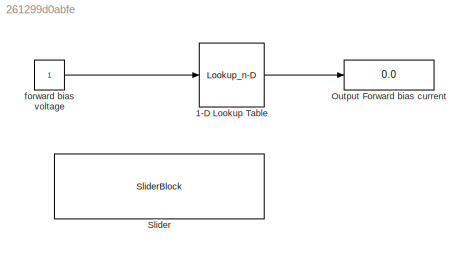
MODEL slx_261299d0abfe
KIND model
CONFIG AbsTol = auto
CONFIG EnableMultiTasking = off
CONFIG FixedStep = auto
CONFIG MaxStep = auto
CONFIG MinStep = auto
CONFIG RelTol = 1e-3
CONFIG SampleTimeConstraint = Unconstrained
CONFIG SolverName = VariableStepAuto
CONFIG StartTime = 0.0
CONFIG StopTime = 10.0
BLOCK [Lookup_n-D] 1-D Lookup Table
  BreakpointsForDimension1 = [0\n0.1000\n0.2000\n0.3000\n0.4000\n0.6000\n0.8000\n1\n1.2000\n1.4000\n1.6000\n1.8000\n2\n2.2000\n2.4000]
  InputPortMap = u0
  InternalRulePriority = Speed
  NumberOfTableDimensions = 1
  Ports = [1, 1]
  RndMeth = Simplest
  Table = [0\n0\n0\n0\n0.5000\n1\n2\n3\n5\n7.5000\n10\n15\n20\n25\n30]
BLOCK [Display] Output Forward bias current
  Decimation = 1
  Ports = [1]
BLOCK [SliderBlock] Slider
  ScaleMax = 2.4
BLOCK [Constant] forward bias voltage
LINE 1-D Lookup Table:1 -> Output Forward bias current:1
LINE forward bias voltage:1 -> 1-D Lookup Table:1
